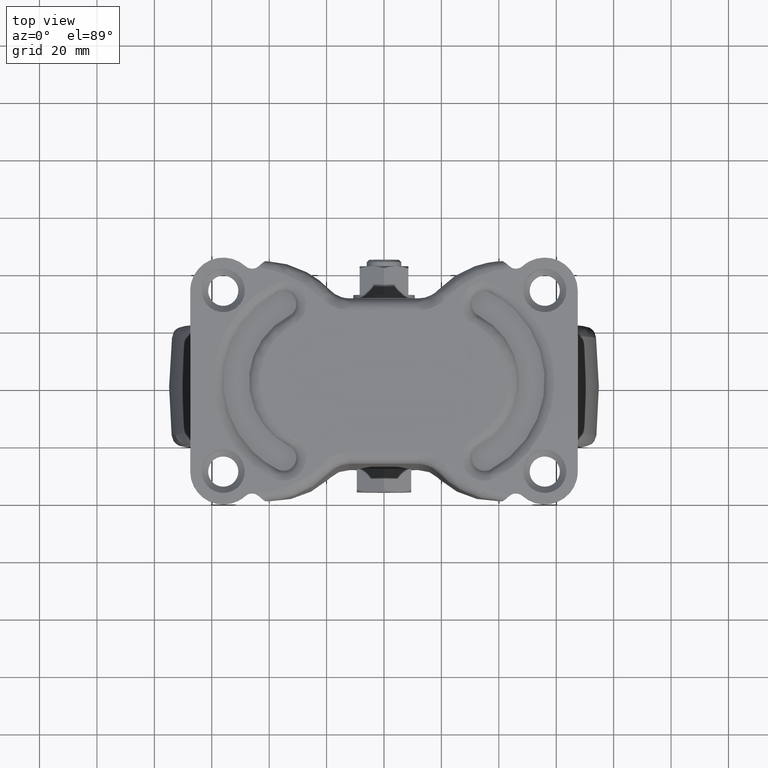
[diagram: clean part render]
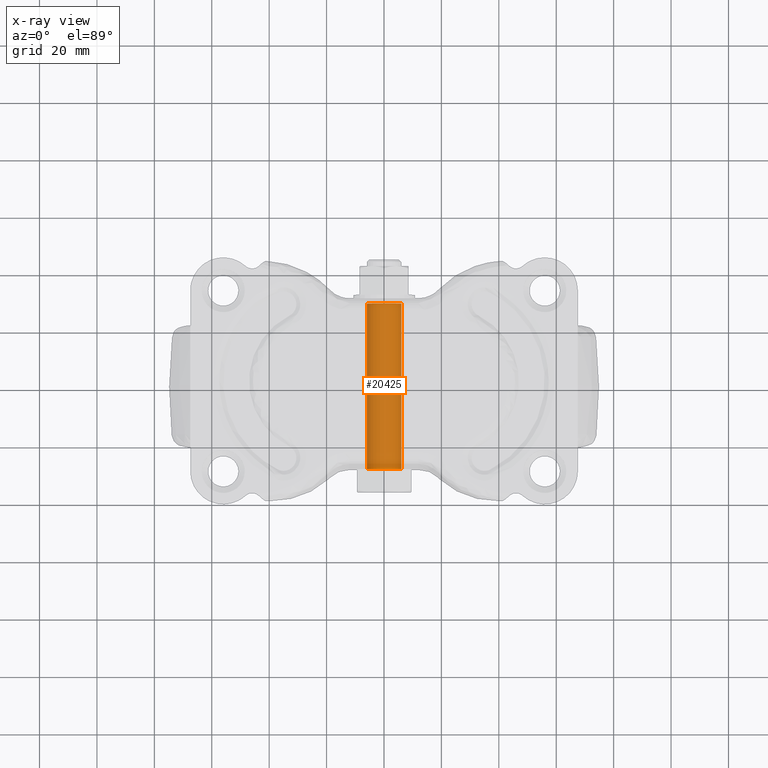
[diagram: x-ray — body ghosted, one internal face saturated and labeled with its STEP entity id]
A machine part, top view, then the same camera in x-ray: the body is ghosted and one INTERNAL B-rep face — a face not visible from any outside direction — is saturated and labeled: STEP entity #20425.
In plain terms, the highlighted face is a freeform B-spline surface patch.
Its self-contained STEP definition (entity closure, byte-faithful):
#20170=CARTESIAN_POINT('',(0.0,-28.850000000000001,-106.0));
#20171=VERTEX_POINT('',#20170);
#20172=CARTESIAN_POINT('',(-5.988809369861910,-28.850000000000041,-111.633718235010090));
#20173=VERTEX_POINT('',#20172);
#20174=CARTESIAN_POINT('',(0.0,-28.850000000000001,-106.0));
#20175=CARTESIAN_POINT('',(-5.644245345343570,-28.850000000000026,-106.000000000000240));
#20176=CARTESIAN_POINT('',(-5.988809369861910,-28.850000000000033,-111.633718235010120));
#20184=(BOUNDED_CURVE()B_SPLINE_CURVE(2,(#20174,#20175,#20176),.UNSPECIFIED.,.F.,.U.)B_SPLINE_CURVE_WITH_KNOTS((3,3),(0.500000000000000,0.739333235151224),.UNSPECIFIED.)CURVE()GEOMETRIC_REPRESENTATION_ITEM()RATIONAL_B_SPLINE_CURVE((1.0,0.719603673550084,0.976072626570386))REPRESENTATION_ITEM(''));
#20185=EDGE_CURVE('',#20171,#20173,#20184,.T.);
#20204=CARTESIAN_POINT('',(5.988809369861909,-28.850000000000051,-112.366281764989910));
#20205=VERTEX_POINT('',#20204);
#20219=CARTESIAN_POINT('',(5.988809369861909,-28.850000000000051,-112.366281764989960));
#20220=CARTESIAN_POINT('',(5.999999999992615,-28.850000000000051,-112.183311830402460));
#20221=CARTESIAN_POINT('',(5.999999999992729,-28.850000000000051,-111.999999999999600));
#20222=CARTESIAN_POINT('',(5.999999999996476,-28.850000000000019,-105.999999999999800));
#20223=CARTESIAN_POINT('',(0.0,-28.850000000000001,-106.0));
#20231=(BOUNDED_CURVE()B_SPLINE_CURVE(2,(#20219,#20220,#20221,#20222,#20223),.UNSPECIFIED.,.F.,.U.)B_SPLINE_CURVE_WITH_KNOTS((3,2,3),(0.239333235151224,0.250000000000000,0.500000000000000),.UNSPECIFIED.)CURVE()GEOMETRIC_REPRESENTATION_ITEM()RATIONAL_B_SPLINE_CURVE((0.976072626570386,0.987503107636464,1.0,0.707106781186548,1.0))REPRESENTATION_ITEM(''));
#20232=EDGE_CURVE('',#20205,#20171,#20231,.T.);
#20359=CARTESIAN_POINT('',(5.988808790531200,30.292500000000011,-112.366291237209100));
#20360=CARTESIAN_POINT('',(6.355100027740342,30.292500000000011,-106.377482446677940));
#20361=CARTESIAN_POINT('',(0.366291237209142,30.292500000000011,-106.011191209468810));
#20362=CARTESIAN_POINT('',(-5.622517553322059,30.292500000000011,-105.644899972259670));
#20363=CARTESIAN_POINT('',(-5.988808790531200,30.292500000000011,-111.633708762790900));
#20364=CARTESIAN_POINT('',(5.988808790531200,-30.328562500000011,-112.366291237209100));
#20365=CARTESIAN_POINT('',(6.355100027740342,-30.328562500000011,-106.377482446677940));
#20366=CARTESIAN_POINT('',(0.366291237209142,-30.328562500000011,-106.011191209468810));
#20367=CARTESIAN_POINT('',(-5.622517553322059,-30.328562500000011,-105.644899972259670));
#20368=CARTESIAN_POINT('',(-5.988808790531200,-30.328562500000011,-111.633708762790900));
#20376=(BOUNDED_SURFACE()B_SPLINE_SURFACE(2,1,((#20359,#20364),(#20360,#20365),(#20361,#20366),(#20362,#20367),(#20363,#20368)),.UNSPECIFIED.,.F.,.F.,.U.)B_SPLINE_SURFACE_WITH_KNOTS((3,2,3),(2,2),(0.0,9.941125496954287,19.882250993908571),(0.0,60.621062500000022),.UNSPECIFIED.)GEOMETRIC_REPRESENTATION_ITEM()RATIONAL_B_SPLINE_SURFACE(((1.0,1.0),(0.707106781186548,0.707106781186548),(1.0,1.0),(0.707106781186548,0.707106781186548),(1.0,1.0)))REPRESENTATION_ITEM('')SURFACE());
#20377=ORIENTED_EDGE('',*,*,#20232,.F.);
#20378=CARTESIAN_POINT('',(5.988809362688425,28.850000000000009,-112.366281882281400));
#20379=VERTEX_POINT('',#20378);
#20380=CARTESIAN_POINT('',(5.988809362688425,28.850000000000009,-112.366281882281400));
#20381=CARTESIAN_POINT('',(5.988809369861909,-28.850000000000051,-112.366281764989910));
#20382=QUASI_UNIFORM_CURVE('',1,(#20380,#20381),.UNSPECIFIED.,.F.,.U.);
#20383=EDGE_CURVE('',#20379,#20205,#20382,.T.);
#20384=ORIENTED_EDGE('',*,*,#20383,.F.);
#20385=CARTESIAN_POINT('',(0.0,28.850000000000001,-106.0));
#20386=VERTEX_POINT('',#20385);
#20387=CARTESIAN_POINT('',(5.988809362688425,28.850000000000005,-112.366281882281410));
#20388=CARTESIAN_POINT('',(5.999999999992800,28.850000000000009,-112.183311889212670));
#20389=CARTESIAN_POINT('',(5.999999999992911,28.850000000000009,-111.999999999999600));
#20390=CARTESIAN_POINT('',(5.999999999996564,28.850000000000005,-105.999999999999800));
#20391=CARTESIAN_POINT('',(0.0,28.850000000000001,-106.0));
#20399=(BOUNDED_CURVE()B_SPLINE_CURVE(2,(#20387,#20388,#20389,#20390,#20391),.UNSPECIFIED.,.F.,.U.)B_SPLINE_CURVE_WITH_KNOTS((3,2,3),(0.239333231771875,0.250000000000000,0.500000000000000),.UNSPECIFIED.)CURVE()GEOMETRIC_REPRESENTATION_ITEM()RATIONAL_B_SPLINE_CURVE((0.976072619327779,0.987503103677309,1.0,0.707106781186548,1.0))REPRESENTATION_ITEM(''));
#20400=EDGE_CURVE('',#20379,#20386,#20399,.T.);
#20401=ORIENTED_EDGE('',*,*,#20400,.T.);
#20402=CARTESIAN_POINT('',(-5.988809362688425,28.850000000000001,-111.633718117718600));
#20403=VERTEX_POINT('',#20402);
#20404=CARTESIAN_POINT('',(0.0,28.850000000000001,-106.0));
#20405=CARTESIAN_POINT('',(-5.644245234593938,28.850000000000001,-106.000000000000240));
#20406=CARTESIAN_POINT('',(-5.988809362688425,28.850000000000005,-111.633718117718600));
#20414=(BOUNDED_CURVE()B_SPLINE_CURVE(2,(#20404,#20405,#20406),.UNSPECIFIED.,.F.,.U.)B_SPLINE_CURVE_WITH_KNOTS((3,3),(0.500000000000000,0.739333231771875),.UNSPECIFIED.)CURVE()GEOMETRIC_REPRESENTATION_ITEM()RATIONAL_B_SPLINE_CURVE((1.0,0.719603677509238,0.976072619327779))REPRESENTATION_ITEM(''));
#20415=EDGE_CURVE('',#20386,#20403,#20414,.T.);
#20416=ORIENTED_EDGE('',*,*,#20415,.T.);
#20417=CARTESIAN_POINT('',(-5.988809362688425,28.850000000000001,-111.633718117718600));
#20418=CARTESIAN_POINT('',(-5.988809369861910,-28.850000000000041,-111.633718235010090));
#20419=QUASI_UNIFORM_CURVE('',1,(#20417,#20418),.UNSPECIFIED.,.F.,.U.);
#20420=EDGE_CURVE('',#20403,#20173,#20419,.T.);
#20421=ORIENTED_EDGE('',*,*,#20420,.T.);
#20422=ORIENTED_EDGE('',*,*,#20185,.F.);
#20423=EDGE_LOOP('',(#20377,#20384,#20401,#20416,#20421,#20422));
#20424=FACE_OUTER_BOUND('',#20423,.T.);
#20425=ADVANCED_FACE('',(#20424),#20376,.T.);